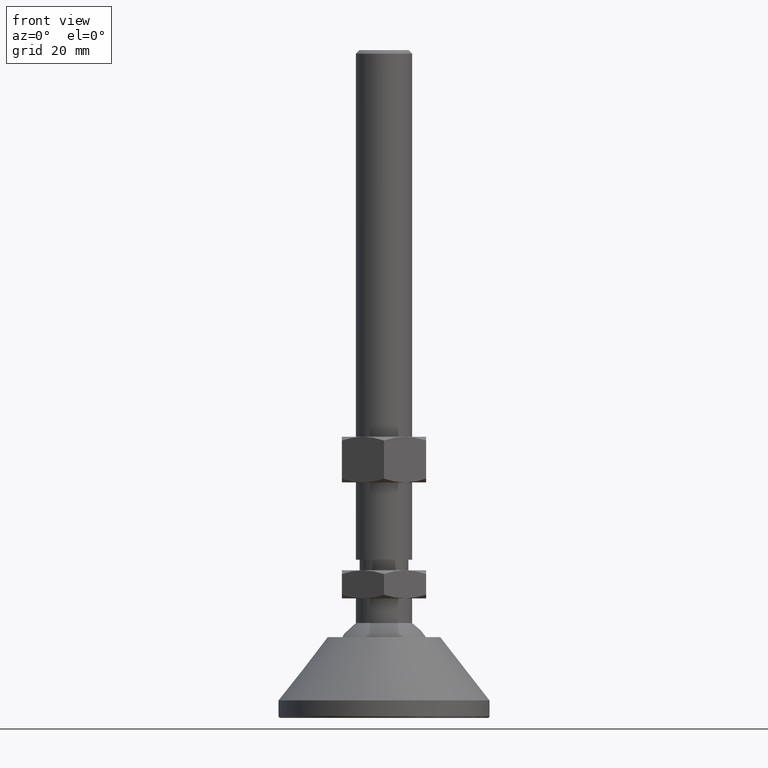
[diagram: clean part render]
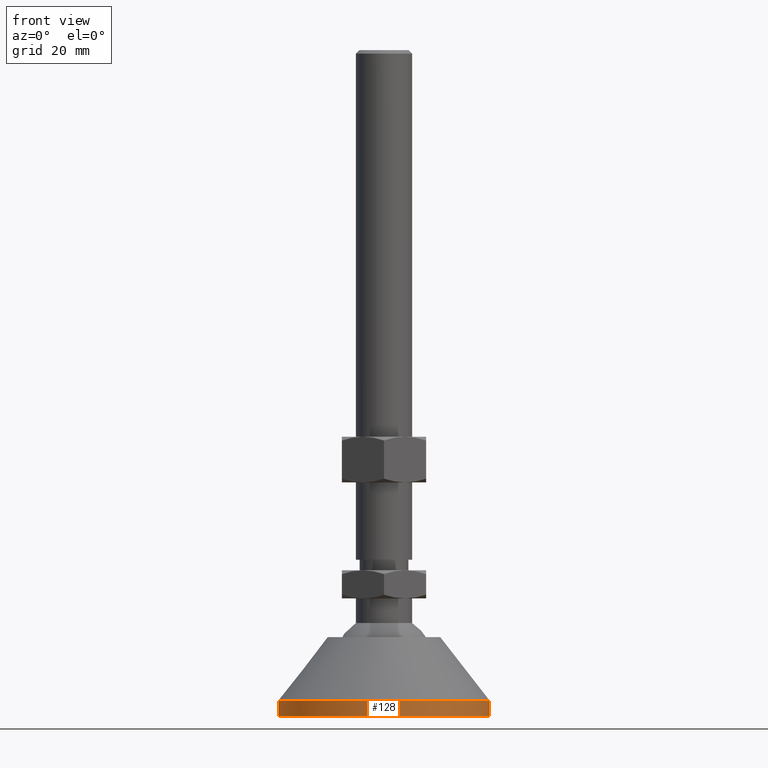
[diagram: same view with one face highlighted and labeled with its STEP entity id]
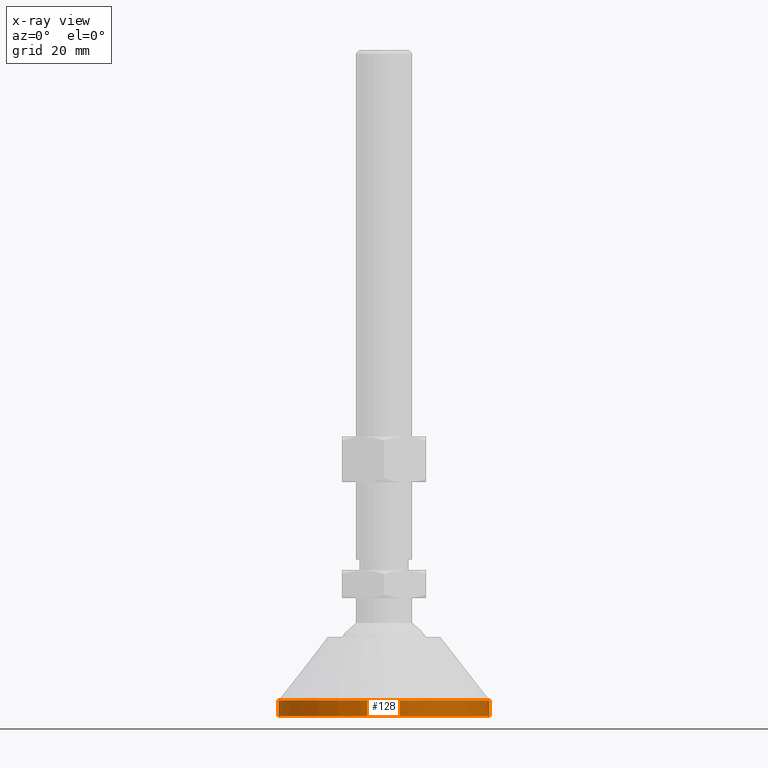
[diagram: x-ray of the same camera — body ghosted, the highlighted face saturated]
A machine part, front view. The second image highlights one B-rep face of the part: STEP entity #128.
The next image is the same camera in x-ray: the body ghosted, the highlighted face saturated — about 0% of this face is hidden behind the body in this view.
In plain terms, the highlighted cylindrical surface (bore or boss wall) has radius 30 mm, axis along (0, -0, -1).
Its self-contained STEP definition (entity closure, byte-faithful):
#63=CARTESIAN_POINT('',(30.000000000000227,3.061617E-017,0.500000000000114));
#64=VERTEX_POINT('',#63);
#72=CARTESIAN_POINT('',(-30.000000000000227,3.061617E-017,0.500000000000114));
#73=VERTEX_POINT('',#72);
#74=CARTESIAN_POINT('',(0.0,3.061617E-017,0.500000000000114));
#75=DIRECTION('',(0.0,-6.123234E-017,-1.0));
#76=DIRECTION('',(1.0,0.0,0.0));
#77=AXIS2_PLACEMENT_3D('',#74,#75,#76);
#78=CIRCLE('',#77,30.000000000000227);
#79=EDGE_CURVE('',#64,#73,#78,.T.);
#81=CARTESIAN_POINT('',(0.0,3.061617E-017,0.500000000000114));
#82=DIRECTION('',(0.0,-6.123234E-017,-1.0));
#83=DIRECTION('',(1.0,0.0,0.0));
#84=AXIS2_PLACEMENT_3D('',#81,#82,#83);
#85=CIRCLE('',#84,30.000000000000227);
#86=EDGE_CURVE('',#73,#64,#85,.T.);
#94=CARTESIAN_POINT('',(0.0,3.061617E-017,0.500000000000114));
#95=DIRECTION('',(0.0,-6.123234E-017,-1.0));
#96=DIRECTION('',(1.0,0.0,0.0));
#97=AXIS2_PLACEMENT_3D('',#94,#95,#96);
#98=CYLINDRICAL_SURFACE('',#97,30.000000000000227);
#99=CARTESIAN_POINT('',(30.000000000000227,3.061617E-016,5.000000000000114));
#100=VERTEX_POINT('',#99);
#101=CARTESIAN_POINT('',(30.000000000000227,3.061617E-017,0.500000000000114));
#102=DIRECTION('',(0.0,0.0,1.0));
#103=VECTOR('',#102,4.500000000000000);
#104=LINE('',#101,#103);
#105=EDGE_CURVE('',#64,#100,#104,.T.);
#106=ORIENTED_EDGE('',*,*,#105,.T.);
#107=CARTESIAN_POINT('',(-30.000000000000227,3.061617E-016,5.000000000000114));
#108=VERTEX_POINT('',#107);
#109=CARTESIAN_POINT('',(0.0,3.061617E-016,5.000000000000114));
#110=DIRECTION('',(0.0,-6.123234E-017,-1.0));
#111=DIRECTION('',(1.0,0.0,0.0));
#112=AXIS2_PLACEMENT_3D('',#109,#110,#111);
#113=CIRCLE('',#112,30.000000000000227);
#114=EDGE_CURVE('',#100,#108,#113,.T.);
#115=ORIENTED_EDGE('',*,*,#114,.T.);
#116=CARTESIAN_POINT('',(0.0,3.061617E-016,5.000000000000114));
#117=DIRECTION('',(0.0,-6.123234E-017,-1.0));
#118=DIRECTION('',(1.0,0.0,0.0));
#119=AXIS2_PLACEMENT_3D('',#116,#117,#118);
#120=CIRCLE('',#119,30.000000000000227);
#121=EDGE_CURVE('',#108,#100,#120,.T.);
#122=ORIENTED_EDGE('',*,*,#121,.T.);
#123=ORIENTED_EDGE('',*,*,#105,.F.);
#124=ORIENTED_EDGE('',*,*,#86,.F.);
#125=ORIENTED_EDGE('',*,*,#79,.F.);
#126=EDGE_LOOP('',(#106,#115,#122,#123,#124,#125));
#127=FACE_OUTER_BOUND('',#126,.T.);
#128=ADVANCED_FACE('',(#127),#98,.T.);